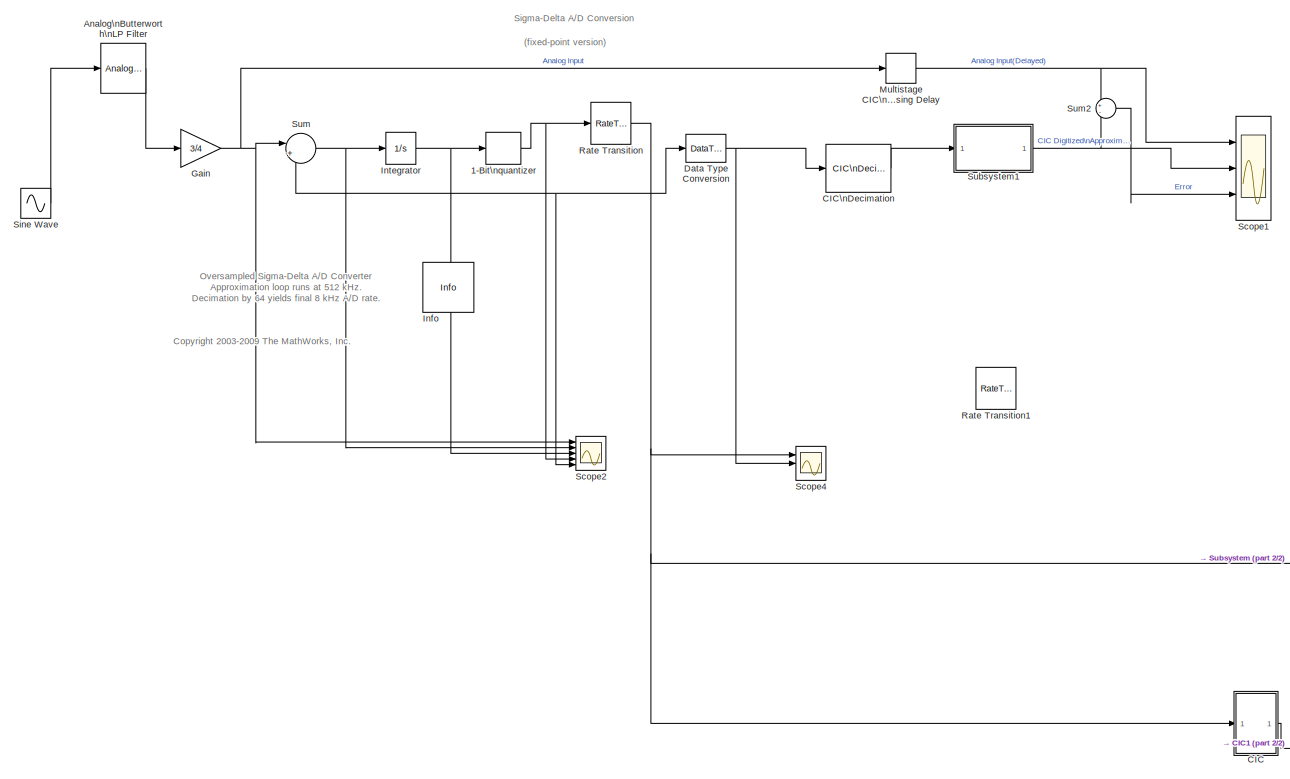
[diagram: root canvas - part 1/2, left side, full height]
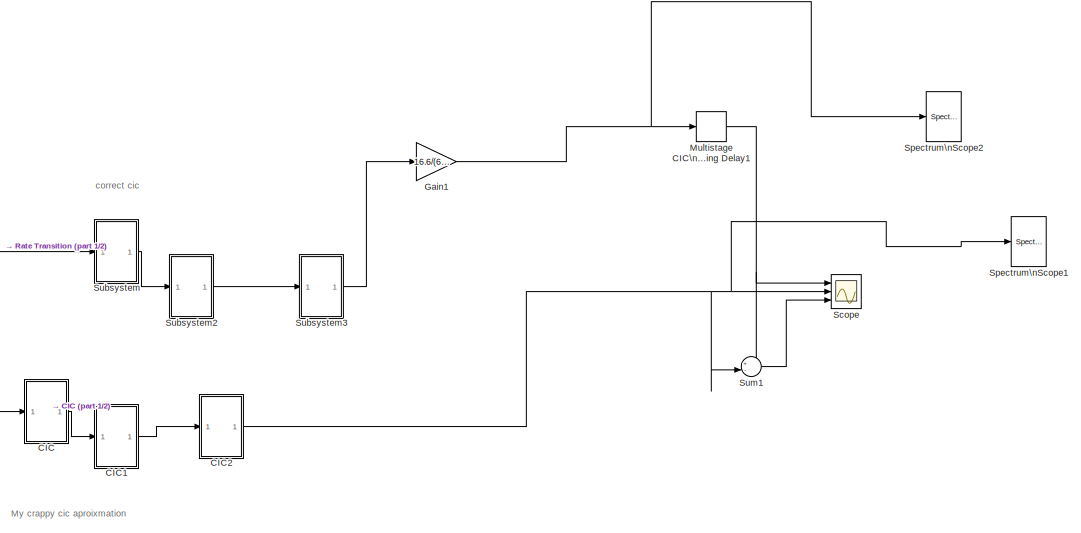
[diagram: root canvas - part 2/2, bottom right region]
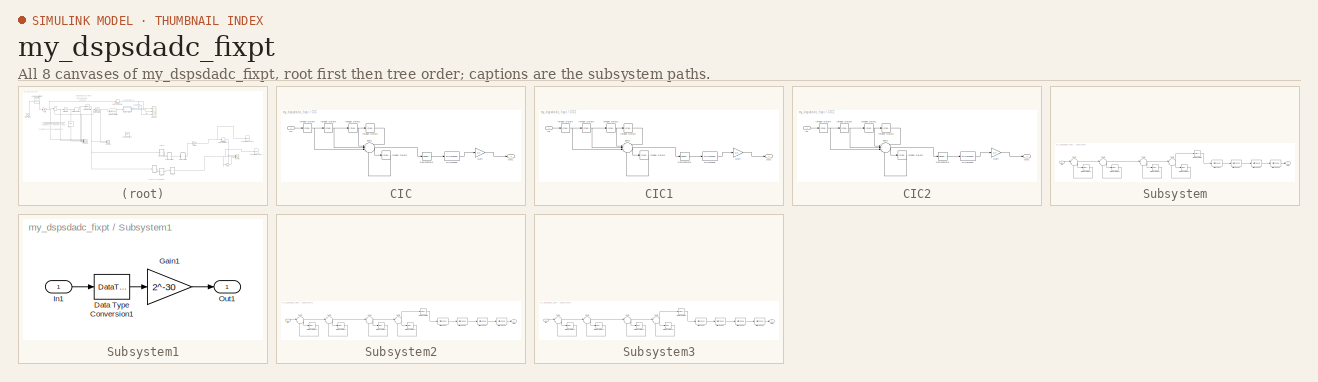
[diagram: thumbnail index - all 8 canvases of the model, root first then tree order]
MODEL my_dspsdadc_fixpt
KIND model
BLOCK [Signum] 1-Bit\nquantizer
  SID = 1
BLOCK [Reference] Analog\nButterworth\nLP Filter  REF=dsparch4/Analog\nFilter Design
  N = 5
  Ports = [1, 1]
  Rp = 2
  Rs = 40
  SID = 2
  SourceBlock = dsparch4/Analog\nFilter Design
  SourceType = Analog Filter Design
  Whi = 80
  Wlo = 2*pi*400
  filttype = Lowpass
  method = Butterworth
BLOCK [SubSystem] CIC
  FunctionWithSeparateData = off
  MaskHideContents = off
  MinAlgLoopOccurrences = off
  Opaque = off
  Ports = [1, 1]
  PropExecContextOutsideSubsystem = off
  RTWSystemCode = Auto
  RequestExecContextInheritance = off
  SID = 59
BLOCK [Reference] CIC/Difference  REF=simulink/Discrete/Difference
  DoSatur = off
  FunctionWithSeparateData = off
  ICPrevInput = 0.0
  LockScale = off
  OutDataType = fixdt(1, 16)
  OutDataTypeStr = Inherit: Inherit via internal rule
  OutMax = []
  OutMin = []
  OutScaling = 2^-10
  OutputDataTypeScalingMode = Inherit via internal rule
  Ports = [1, 1]
  RTWMemSecDataConstants = Inherit from model
  RTWMemSecDataInternal = Inherit from model
  RTWMemSecDataParameters = Inherit from model
  RTWMemSecFuncExecute = Inherit from model
  RTWMemSecFuncInitTerm = Inherit from model
  RndMeth = Floor
  SID = 57
  ShowPortLabels = FromPortIcon
  SourceBlock = simulink/Discrete/Difference
  SourceType = Difference
  SystemSampleTime = -1
BLOCK [Reference] CIC/Downsample  REF=dspsigops/Downsample
  N = 4
  Ports = [1, 1]
  SID = 55
  SourceBlock = dspsigops/Downsample
  SourceType = Downsample
  fmode = Maintain input frame size
  ic = 0
  phase = 0
  smode = Allow multirate
BLOCK [Gain] CIC/Gain
  Gain = 1/4
  OutDataType = sfix(16)
  OutScaling = 2^0
  ParameterDataType = sfix(16)
  ParameterScaling = 2^0
  SID = 89
BLOCK [Inport] CIC/In1
  IconDisplay = Port number
  SID = 60
BLOCK [Reference] CIC/Integer Delay1  REF=simulink/Discrete/Integer Delay
  NumDelays = 1
  Ports = [1, 1]
  SID = 53
  SourceBlock = simulink/Discrete/Integer Delay
  SourceType = Integer Delay
  samptime = -1
  vinit = 0.0
BLOCK [Reference] CIC/Integer Delay2  REF=simulink/Discrete/Integer Delay
  NumDelays = 1
  Ports = [1, 1]
  SID = 54
  SourceBlock = simulink/Discrete/Integer Delay
  SourceType = Integer Delay
  samptime = -1
  vinit = 0.0
BLOCK [Reference] CIC/Integer Delay3  REF=simulink/Discrete/Integer Delay
  NumDelays = 1
  Ports = [1, 1]
  SID = 58
  SourceBlock = simulink/Discrete/Integer Delay
  SourceType = Integer Delay
  samptime = -1
  vinit = 0.0
BLOCK [Reference] CIC/Integer Delay4  REF=simulink/Discrete/Integer Delay
  NumDelays = 1
  Ports = [1, 1]
  SID = 50
  SourceBlock = simulink/Discrete/Integer Delay
  SourceType = Integer Delay
  samptime = -1
  vinit = 0.0
BLOCK [Reference] CIC/Integer Delay5  REF=simulink/Discrete/Integer Delay
  NumDelays = 1
  Ports = [1, 1]
  SID = 52
  SourceBlock = simulink/Discrete/Integer Delay
  SourceType = Integer Delay
  samptime = -1
  vinit = 0.0
BLOCK [Outport] CIC/Out1
  IconDisplay = Port number
  SID = 61
BLOCK [Sum] CIC/Sum1
  IconShape = round
  Inputs = ++++||+
  OutDataType = sfix(16)
  OutScaling = 2^0
  Ports = [5, 1]
  SID = 51
BLOCK [SubSystem] CIC1
  FunctionWithSeparateData = off
  MaskHideContents = off
  MinAlgLoopOccurrences = off
  Opaque = off
  Ports = [1, 1]
  PropExecContextOutsideSubsystem = off
  RTWSystemCode = Auto
  RequestExecContextInheritance = off
  SID = 155
BLOCK [Reference] CIC1/Difference  REF=simulink/Discrete/Difference
  DoSatur = off
  FunctionWithSeparateData = off
  ICPrevInput = 0.0
  LockScale = off
  OutDataType = fixdt(1, 16)
  OutDataTypeStr = Inherit: Inherit via internal rule
  OutMax = []
  OutMin = []
  OutScaling = 2^-10
  OutputDataTypeScalingMode = Inherit via internal rule
  Ports = [1, 1]
  RTWMemSecDataConstants = Inherit from model
  RTWMemSecDataInternal = Inherit from model
  RTWMemSecDataParameters = Inherit from model
  RTWMemSecFuncExecute = Inherit from model
  RTWMemSecFuncInitTerm = Inherit from model
  RndMeth = Floor
  SID = 157
  ShowPortLabels = FromPortIcon
  SourceBlock = simulink/Discrete/Difference
  SourceType = Difference
  SystemSampleTime = -1
BLOCK [Reference] CIC1/Downsample  REF=dspsigops/Downsample
  N = 4
  Ports = [1, 1]
  SID = 158
  SourceBlock = dspsigops/Downsample
  SourceType = Downsample
  fmode = Maintain input frame size
  ic = 0
  phase = 0
  smode = Allow multirate
BLOCK [Gain] CIC1/Gain
  Gain = 1/4
  OutDataType = sfix(16)
  OutScaling = 2^0
  ParameterDataType = sfix(16)
  ParameterScaling = 2^0
  SID = 159
BLOCK [Inport] CIC1/In1
  IconDisplay = Port number
  SID = 156
BLOCK [Reference] CIC1/Integer Delay1  REF=simulink/Discrete/Integer Delay
  NumDelays = 1
  Ports = [1, 1]
  SID = 160
  SourceBlock = simulink/Discrete/Integer Delay
  SourceType = Integer Delay
  samptime = -1
  vinit = 0.0
BLOCK [Reference] CIC1/Integer Delay2  REF=simulink/Discrete/Integer Delay
  NumDelays = 1
  Ports = [1, 1]
  SID = 161
  SourceBlock = simulink/Discrete/Integer Delay
  SourceType = Integer Delay
  samptime = -1
  vinit = 0.0
BLOCK [Reference] CIC1/Integer Delay3  REF=simulink/Discrete/Integer Delay
  NumDelays = 1
  Ports = [1, 1]
  SID = 162
  SourceBlock = simulink/Discrete/Integer Delay
  SourceType = Integer Delay
  samptime = -1
  vinit = 0.0
BLOCK [Reference] CIC1/Integer Delay4  REF=simulink/Discrete/Integer Delay
  NumDelays = 1
  Ports = [1, 1]
  SID = 163
  SourceBlock = simulink/Discrete/Integer Delay
  SourceType = Integer Delay
  samptime = -1
  vinit = 0.0
BLOCK [Reference] CIC1/Integer Delay5  REF=simulink/Discrete/Integer Delay
  NumDelays = 1
  Ports = [1, 1]
  SID = 164
  SourceBlock = simulink/Discrete/Integer Delay
  SourceType = Integer Delay
  samptime = -1
  vinit = 0.0
BLOCK [Outport] CIC1/Out1
  IconDisplay = Port number
  SID = 166
BLOCK [Sum] CIC1/Sum1
  IconShape = round
  Inputs = ++++||+
  OutDataType = sfix(16)
  OutScaling = 2^0
  Ports = [5, 1]
  SID = 165
BLOCK [SubSystem] CIC2
  FunctionWithSeparateData = off
  MaskHideContents = off
  MinAlgLoopOccurrences = off
  Opaque = off
  Ports = [1, 1]
  PropExecContextOutsideSubsystem = off
  RTWSystemCode = Auto
  RequestExecContextInheritance = off
  SID = 167
BLOCK [Reference] CIC2/Difference  REF=simulink/Discrete/Difference
  DoSatur = off
  FunctionWithSeparateData = off
  ICPrevInput = 0.0
  LockScale = off
  OutDataType = fixdt(1, 16)
  OutDataTypeStr = Inherit: Inherit via internal rule
  OutMax = []
  OutMin = []
  OutScaling = 2^-10
  OutputDataTypeScalingMode = Inherit via internal rule
  Ports = [1, 1]
  RTWMemSecDataConstants = Inherit from model
  RTWMemSecDataInternal = Inherit from model
  RTWMemSecDataParameters = Inherit from model
  RTWMemSecFuncExecute = Inherit from model
  RTWMemSecFuncInitTerm = Inherit from model
  RndMeth = Floor
  SID = 169
  ShowPortLabels = FromPortIcon
  SourceBlock = simulink/Discrete/Difference
  SourceType = Difference
  SystemSampleTime = -1
BLOCK [Reference] CIC2/Downsample  REF=dspsigops/Downsample
  N = 4
  Ports = [1, 1]
  SID = 170
  SourceBlock = dspsigops/Downsample
  SourceType = Downsample
  fmode = Maintain input frame size
  ic = 0
  phase = 0
  smode = Allow multirate
BLOCK [Gain] CIC2/Gain
  Gain = 1/4
  OutDataType = sfix(16)
  OutScaling = 2^0
  ParameterDataType = sfix(16)
  ParameterScaling = 2^0
  SID = 171
BLOCK [Inport] CIC2/In1
  IconDisplay = Port number
  SID = 168
BLOCK [Reference] CIC2/Integer Delay1  REF=simulink/Discrete/Integer Delay
  NumDelays = 1
  Ports = [1, 1]
  SID = 172
  SourceBlock = simulink/Discrete/Integer Delay
  SourceType = Integer Delay
  samptime = -1
  vinit = 0.0
BLOCK [Reference] CIC2/Integer Delay2  REF=simulink/Discrete/Integer Delay
  NumDelays = 1
  Ports = [1, 1]
  SID = 173
  SourceBlock = simulink/Discrete/Integer Delay
  SourceType = Integer Delay
  samptime = -1
  vinit = 0.0
BLOCK [Reference] CIC2/Integer Delay3  REF=simulink/Discrete/Integer Delay
  NumDelays = 1
  Ports = [1, 1]
  SID = 174
  SourceBlock = simulink/Discrete/Integer Delay
  SourceType = Integer Delay
  samptime = -1
  vinit = 0.0
BLOCK [Reference] CIC2/Integer Delay4  REF=simulink/Discrete/Integer Delay
  NumDelays = 1
  Ports = [1, 1]
  SID = 175
  SourceBlock = simulink/Discrete/Integer Delay
  SourceType = Integer Delay
  samptime = -1
  vinit = 0.0
BLOCK [Reference] CIC2/Integer Delay5  REF=simulink/Discrete/Integer Delay
  NumDelays = 1
  Ports = [1, 1]
  SID = 176
  SourceBlock = simulink/Discrete/Integer Delay
  SourceType = Integer Delay
  samptime = -1
  vinit = 0.0
BLOCK [Outport] CIC2/Out1
  IconDisplay = Port number
  SID = 178
BLOCK [Sum] CIC2/Sum1
  IconShape = round
  Inputs = ++++||+
  OutDataType = sfix(16)
  OutScaling = 2^0
  Ports = [5, 1]
  SID = 177
BLOCK [Reference] CIC\nDecimation  REF=dspmlti4/CIC\nDecimation
  BPS = [32 30 24 20 16 16 16 16 16 16]
  DialogController = dspdialog.CICDecimation
  FLPS = 0
  M = 1
  N = 5
  Ports = [1, 1]
  R = 64
  SID = 3
  SourceBlock = dspmlti4/CIC\nDecimation
  SourceType = CIC Decimation
  UserData = DataTag0
  UserDataPersistent = on
  filtFrom = Dialog
  filterInternals = Full precision
  filtobj = Hm_decim
  framing = Maintain input frame rate
  ftype = Decimator
  launchFVT = off
  outputFracLength = 0
  outputWordLength = 16
BLOCK [DataTypeConversion] Data Type Conversion
  OutDataType = fixdt(1,2,0)
  OutDataTypeMode = Specify via dialog
  OutDataTypeStr = fixdt(1,2,0)
  RndMeth = Floor
  SID = 4
  SaturateOnIntegerOverflow = off
BLOCK [Gain] Gain
  Gain = 3/4
  OutDataType = sfix(16)
  OutScaling = 2^0
  ParameterDataType = sfix(16)
  ParameterScaling = 2^0
  SID = 5
BLOCK [Gain] Gain1
  Gain = 16.6/(64*4096)
  OutDataType = sfix(16)
  OutScaling = 2^0
  ParameterDataType = sfix(16)
  ParameterScaling = 2^0
  SID = 179
BLOCK [Reference] Info  REF=dspmisc/Info
  FunctionWithSeparateData = off
  Ports = []
  RTWMemSecDataConstants = Inherit from model
  RTWMemSecDataInternal = Inherit from model
  RTWMemSecDataParameters = Inherit from model
  RTWMemSecFuncExecute = Inherit from model
  RTWMemSecFuncInitTerm = Inherit from model
  SID = 6
  ShowPortLabels = FromPortIcon
  SourceBlock = dspmisc/Info
  SystemSampleTime = -1
BLOCK [Integrator] Integrator
  Ports = [1, 1]
  SID = 7
BLOCK [TransportDelay] Multistage CIC\nProcessing Delay
  DelayTime = 250/512000
  SID = 8
BLOCK [TransportDelay] Multistage CIC\nProcessing Delay1
  DelayTime = 0.1/10000
  SID = 181
BLOCK [RateTransition] Rate Transition
  OutPortSampleTime = 1/(512*1024)
  SID = 28
BLOCK [RateTransition] Rate Transition1
  OutPortSampleTime = 1/(512*1024)
  SID = 47
BLOCK [Scope] Scope
  DataFormat = StructureWithTime
  Floating = off
  LimitDataPoints = off
  NumInputPorts = 3
  Ports = [3]
  SID = 118
  SampleTime = 0
  SaveName = ScopeData1
  YMax = 5~5~5
  YMin = -5~-5~-5
  ZoomMode = xonly
BLOCK [Scope] Scope1
  DataFormat = StructureWithTime
  Floating = off
  LimitDataPoints = off
  MaxDataPoints = 15000
  NumInputPorts = 3
  Ports = [3]
  SID = 9
  SampleTime = 0
  TimeRange = 0.025
  YMax = 1.1~1.1~0.25
  YMin = -1.1~-1.1~-0.25
  ZoomMode = xonly
BLOCK [Scope] Scope2
  DataFormat = StructureWithTime
  Floating = off
  LimitDataPoints = off
  NumInputPorts = 5
  Ports = [5]
  SID = 190
  SampleTime = 0
  SaveName = ScopeData2
  YMax = 5~5~5~5~5
  YMin = -5~-5~-5~-5~-5
  ZoomMode = xonly
BLOCK [Scope] Scope4
  DataFormat = StructureWithTime
  Floating = off
  LimitDataPoints = off
  NumInputPorts = 3
  Ports = [3]
  SID = 24
  SampleTime = 0
  SaveName = ScopeData4
  YMax = 5~5~5
  YMin = -5~-5~-5
  ZoomMode = xonly
BLOCK [Sin] Sine Wave
  Amplitude = 1
  Bias = 0
  Frequency = 1
  Offset = 0
  Phase = 0
  Ports = [0, 1]
  SID = 19
  SampleTime = 1/(512*1024)
  Samples = 10000
  SineType = Sample based
BLOCK [Reference] Spectrum\nScope1  REF=dspsnks4/Spectrum\nScope
  AxisGrid = on
  AxisLegend = off
  AxisProperties = off
  AxisZoom = off
  BufferSize = 128
  DialogController = dspdialog.SpectrumScope
  DialogControllerArgs = DataTag1
  DisplayProperties = off
  Domain = Frequency
  FFTlength = 4096
  FigPos = get(0,'defaultfigureposition')
  FrameNumber = on
  FunctionWithSeparateData = off
  HorizSpan = 1
  InheritXIncr = on
  LineProperties = off
  Memory = off
  OpenScopeAtSimStart = on
  OpenScopeImmediately = off
  Overlap = 64
  Ports = [1]
  RTWMemSecDataConstants = Inherit from model
  RTWMemSecDataInternal = Inherit from model
  RTWMemSecDataParameters = Inherit from model
  RTWMemSecFuncExecute = Inherit from model
  RTWMemSecFuncInitTerm = Inherit from model
  RsSpecScope = 50
  SID = 188
  ScopeProperties = on
  ShowPortLabels = none
  SourceBlock = dspsnks4/Spectrum\nScope
  SourceType = Spectrum Scope
  SystemSampleTime = -1
  UseBuffer = on
  XAxisParamsVer = 6.9
  XDisplay = 0
  XIncr = 1.0
  XLabel = Samples
  XLimit = Auto
  XMax = 1
  XMin = 0
  XRange = Two-sided ((-Fs/2...Fs/2])
  XUnits = Hertz
  YLabel = Magnitude-squared, dB
  YMax = 100
  YMin = -100
  YUnits = dBW/Hertz
  betaSpecScope = 5
  inpFftLenInherit = off
  numAvg = 2
  winsampSpecScope = Periodic
  wintypeSpecScope = Hann
BLOCK [Reference] Spectrum\nScope2  REF=dspsnks4/Spectrum\nScope
  AxisGrid = on
  AxisLegend = off
  AxisProperties = off
  AxisZoom = off
  BufferSize = 128
  DialogController = dspdialog.SpectrumScope
  DialogControllerArgs = DataTag2
  DisplayProperties = off
  Domain = Frequency
  FFTlength = 4096
  FigPos = get(0,'defaultfigureposition')
  FrameNumber = on
  FunctionWithSeparateData = off
  HorizSpan = 1
  InheritXIncr = on
  LineProperties = off
  Memory = off
  OpenScopeAtSimStart = on
  OpenScopeImmediately = off
  Overlap = 64
  Ports = [1]
  RTWMemSecDataConstants = Inherit from model
  RTWMemSecDataInternal = Inherit from model
  RTWMemSecDataParameters = Inherit from model
  RTWMemSecFuncExecute = Inherit from model
  RTWMemSecFuncInitTerm = Inherit from model
  RsSpecScope = 50
  SID = 185
  ScopeProperties = on
  ShowPortLabels = none
  SourceBlock = dspsnks4/Spectrum\nScope
  SourceType = Spectrum Scope
  SystemSampleTime = -1
  UseBuffer = on
  XAxisParamsVer = 6.9
  XDisplay = 0
  XIncr = 1.0
  XLabel = Samples
  XLimit = Auto
  XMax = 1
  XMin = 0
  XRange = Two-sided ((-Fs/2...Fs/2])
  XUnits = Hertz
  YLabel = Magnitude-squared, dB
  YMax = 100
  YMin = -100
  YUnits = dBW/Hertz
  betaSpecScope = 5
  inpFftLenInherit = off
  numAvg = 2
  winsampSpecScope = Periodic
  wintypeSpecScope = Hann
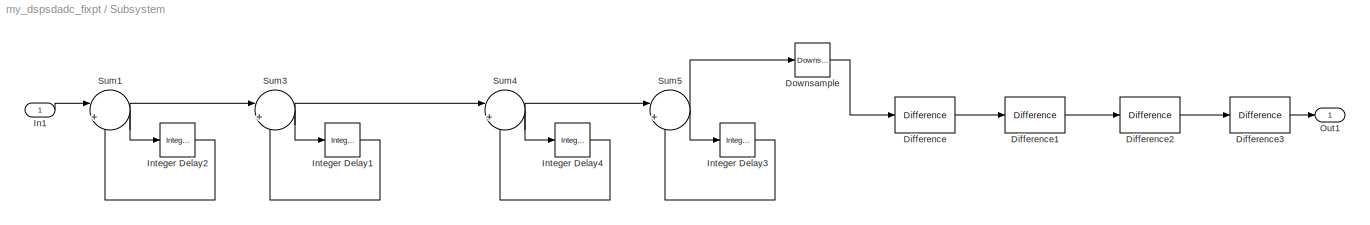
BLOCK [SubSystem] Subsystem
  FunctionWithSeparateData = off
  MaskHideContents = off
  MinAlgLoopOccurrences = off
  Opaque = off
  Ports = [1, 1]
  PropExecContextOutsideSubsystem = off
  RTWSystemCode = Auto
  RequestExecContextInheritance = off
  SID = 120
BLOCK [Reference] Subsystem/Difference  REF=simulink/Discrete/Difference
  DoSatur = off
  FunctionWithSeparateData = off
  ICPrevInput = 0.0
  LockScale = off
  OutDataType = fixdt(1, 16)
  OutDataTypeStr = Inherit: Inherit via internal rule
  OutMax = []
  OutMin = []
  OutScaling = 2^-10
  OutputDataTypeScalingMode = Inherit via internal rule
  Ports = [1, 1]
  RTWMemSecDataConstants = Inherit from model
  RTWMemSecDataInternal = Inherit from model
  RTWMemSecDataParameters = Inherit from model
  RTWMemSecFuncExecute = Inherit from model
  RTWMemSecFuncInitTerm = Inherit from model
  RndMeth = Floor
  SID = 114
  ShowPortLabels = FromPortIcon
  SourceBlock = simulink/Discrete/Difference
  SourceType = Difference
  SystemSampleTime = -1
BLOCK [Reference] Subsystem/Difference1  REF=simulink/Discrete/Difference
  DoSatur = off
  FunctionWithSeparateData = off
  ICPrevInput = 0.0
  LockScale = off
  OutDataType = fixdt(1, 16)
  OutDataTypeStr = Inherit: Inherit via internal rule
  OutMax = []
  OutMin = []
  OutScaling = 2^-10
  OutputDataTypeScalingMode = Inherit via internal rule
  Ports = [1, 1]
  RTWMemSecDataConstants = Inherit from model
  RTWMemSecDataInternal = Inherit from model
  RTWMemSecDataParameters = Inherit from model
  RTWMemSecFuncExecute = Inherit from model
  RTWMemSecFuncInitTerm = Inherit from model
  RndMeth = Floor
  SID = 115
  ShowPortLabels = FromPortIcon
  SourceBlock = simulink/Discrete/Difference
  SourceType = Difference
  SystemSampleTime = -1
BLOCK [Reference] Subsystem/Difference2  REF=simulink/Discrete/Difference
  DoSatur = off
  FunctionWithSeparateData = off
  ICPrevInput = 0.0
  LockScale = off
  OutDataType = fixdt(1, 16)
  OutDataTypeStr = Inherit: Inherit via internal rule
  OutMax = []
  OutMin = []
  OutScaling = 2^-10
  OutputDataTypeScalingMode = Inherit via internal rule
  Ports = [1, 1]
  RTWMemSecDataConstants = Inherit from model
  RTWMemSecDataInternal = Inherit from model
  RTWMemSecDataParameters = Inherit from model
  RTWMemSecFuncExecute = Inherit from model
  RTWMemSecFuncInitTerm = Inherit from model
  RndMeth = Floor
  SID = 116
  ShowPortLabels = FromPortIcon
  SourceBlock = simulink/Discrete/Difference
  SourceType = Difference
  SystemSampleTime = -1
BLOCK [Reference] Subsystem/Difference3  REF=simulink/Discrete/Difference
  DoSatur = off
  FunctionWithSeparateData = off
  ICPrevInput = 0.0
  LockScale = off
  OutDataType = fixdt(1, 16)
  OutDataTypeStr = Inherit: Inherit via internal rule
  OutMax = []
  OutMin = []
  OutScaling = 2^-10
  OutputDataTypeScalingMode = Inherit via internal rule
  Ports = [1, 1]
  RTWMemSecDataConstants = Inherit from model
  RTWMemSecDataInternal = Inherit from model
  RTWMemSecDataParameters = Inherit from model
  RTWMemSecFuncExecute = Inherit from model
  RTWMemSecFuncInitTerm = Inherit from model
  RndMeth = Floor
  SID = 117
  ShowPortLabels = FromPortIcon
  SourceBlock = simulink/Discrete/Difference
  SourceType = Difference
  SystemSampleTime = -1
BLOCK [Reference] Subsystem/Downsample  REF=dspsigops/Downsample
  N = 2
  Ports = [1, 1]
  SID = 119
  SourceBlock = dspsigops/Downsample
  SourceType = Downsample
  fmode = Maintain input frame size
  ic = 0
  phase = 0
  smode = Allow multirate
BLOCK [Inport] Subsystem/In1
  IconDisplay = Port number
  SID = 121
BLOCK [Reference] Subsystem/Integer Delay1  REF=simulink/Discrete/Integer Delay
  NumDelays = 1
  Ports = [1, 1]
  SID = 108
  SourceBlock = simulink/Discrete/Integer Delay
  SourceType = Integer Delay
  samptime = -1
  vinit = 0.0
BLOCK [Reference] Subsystem/Integer Delay2  REF=simulink/Discrete/Integer Delay
  NumDelays = 1
  Ports = [1, 1]
  SID = 103
  SourceBlock = simulink/Discrete/Integer Delay
  SourceType = Integer Delay
  samptime = -1
  vinit = 0.0
BLOCK [Reference] Subsystem/Integer Delay3  REF=simulink/Discrete/Integer Delay
  NumDelays = 1
  Ports = [1, 1]
  SID = 110
  SourceBlock = simulink/Discrete/Integer Delay
  SourceType = Integer Delay
  samptime = -1
  vinit = 0.0
BLOCK [Reference] Subsystem/Integer Delay4  REF=simulink/Discrete/Integer Delay
  NumDelays = 1
  Ports = [1, 1]
  SID = 111
  SourceBlock = simulink/Discrete/Integer Delay
  SourceType = Integer Delay
  samptime = -1
  vinit = 0.0
BLOCK [Outport] Subsystem/Out1
  IconDisplay = Port number
  SID = 122
BLOCK [Sum] Subsystem/Sum1
  IconShape = round
  Inputs = |++
  OutDataType = sfix(16)
  OutScaling = 2^0
  Ports = [2, 1]
  SID = 107
BLOCK [Sum] Subsystem/Sum3
  IconShape = round
  Inputs = |++
  OutDataType = sfix(16)
  OutScaling = 2^0
  Ports = [2, 1]
  SID = 109
BLOCK [Sum] Subsystem/Sum4
  IconShape = round
  Inputs = |++
  OutDataType = sfix(16)
  OutScaling = 2^0
  Ports = [2, 1]
  SID = 112
BLOCK [Sum] Subsystem/Sum5
  IconShape = round
  Inputs = |++
  OutDataType = sfix(16)
  OutScaling = 2^0
  Ports = [2, 1]
  SID = 113
BLOCK [SubSystem] Subsystem1
  FunctionWithSeparateData = off
  MaskDisplay = disp('Rescaling for\\nComparison')
  MaskHideContents = off
  MaskIconFrame = on
  MaskIconOpaque = on
  MaskIconRotate = none
  MaskIconUnits = autoscale
  MaskPortRotate = default
  MinAlgLoopOccurrences = off
  Opaque = off
  Ports = [1, 1]
  PropExecContextOutsideSubsystem = off
  RTWSystemCode = Auto
  RequestExecContextInheritance = off
  SID = 11
BLOCK [DataTypeConversion] Subsystem1/Data Type Conversion1
  OutDataType = sfix(2)
  OutDataTypeMode = single
  OutDataTypeStr = single
  OutScaling = 2^0
  RndMeth = Floor
  SID = 13
  SaturateOnIntegerOverflow = off
BLOCK [Gain] Subsystem1/Gain1
  Gain = 2^-30
  OutDataType = sfix(16)
  OutScaling = 2^0
  ParameterDataType = sfix(16)
  ParameterScaling = 2^0
  SID = 14
BLOCK [Inport] Subsystem1/In1
  IconDisplay = Port number
  OutDataType = sfix(16)
  OutScaling = 2^0
  SID = 12
BLOCK [Outport] Subsystem1/Out1
  IconDisplay = Port number
  OutDataType = sfix(16)
  OutScaling = 2^0
  SID = 15
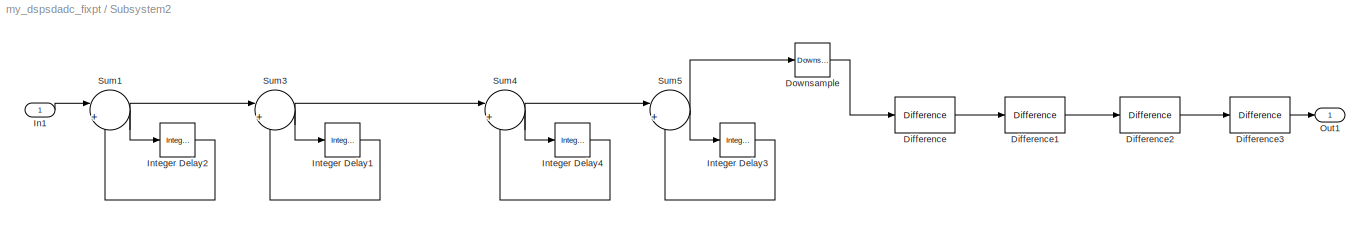
BLOCK [SubSystem] Subsystem2
  FunctionWithSeparateData = off
  MaskHideContents = off
  MinAlgLoopOccurrences = off
  Opaque = off
  Ports = [1, 1]
  PropExecContextOutsideSubsystem = off
  RTWSystemCode = Auto
  RequestExecContextInheritance = off
  SID = 123
BLOCK [Reference] Subsystem2/Difference  REF=simulink/Discrete/Difference
  DoSatur = off
  FunctionWithSeparateData = off
  ICPrevInput = 0.0
  LockScale = off
  OutDataType = fixdt(1, 16)
  OutDataTypeStr = Inherit: Inherit via internal rule
  OutMax = []
  OutMin = []
  OutScaling = 2^-10
  OutputDataTypeScalingMode = Inherit via internal rule
  Ports = [1, 1]
  RTWMemSecDataConstants = Inherit from model
  RTWMemSecDataInternal = Inherit from model
  RTWMemSecDataParameters = Inherit from model
  RTWMemSecFuncExecute = Inherit from model
  RTWMemSecFuncInitTerm = Inherit from model
  RndMeth = Floor
  SID = 125
  ShowPortLabels = FromPortIcon
  SourceBlock = simulink/Discrete/Difference
  SourceType = Difference
  SystemSampleTime = -1
BLOCK [Reference] Subsystem2/Difference1  REF=simulink/Discrete/Difference
  DoSatur = off
  FunctionWithSeparateData = off
  ICPrevInput = 0.0
  LockScale = off
  OutDataType = fixdt(1, 16)
  OutDataTypeStr = Inherit: Inherit via internal rule
  OutMax = []
  OutMin = []
  OutScaling = 2^-10
  OutputDataTypeScalingMode = Inherit via internal rule
  Ports = [1, 1]
  RTWMemSecDataConstants = Inherit from model
  RTWMemSecDataInternal = Inherit from model
  RTWMemSecDataParameters = Inherit from model
  RTWMemSecFuncExecute = Inherit from model
  RTWMemSecFuncInitTerm = Inherit from model
  RndMeth = Floor
  SID = 126
  ShowPortLabels = FromPortIcon
  SourceBlock = simulink/Discrete/Difference
  SourceType = Difference
  SystemSampleTime = -1
BLOCK [Reference] Subsystem2/Difference2  REF=simulink/Discrete/Difference
  DoSatur = off
  FunctionWithSeparateData = off
  ICPrevInput = 0.0
  LockScale = off
  OutDataType = fixdt(1, 16)
  OutDataTypeStr = Inherit: Inherit via internal rule
  OutMax = []
  OutMin = []
  OutScaling = 2^-10
  OutputDataTypeScalingMode = Inherit via internal rule
  Ports = [1, 1]
  RTWMemSecDataConstants = Inherit from model
  RTWMemSecDataInternal = Inherit from model
  RTWMemSecDataParameters = Inherit from model
  RTWMemSecFuncExecute = Inherit from model
  RTWMemSecFuncInitTerm = Inherit from model
  RndMeth = Floor
  SID = 127
  ShowPortLabels = FromPortIcon
  SourceBlock = simulink/Discrete/Difference
  SourceType = Difference
  SystemSampleTime = -1
BLOCK [Reference] Subsystem2/Difference3  REF=simulink/Discrete/Difference
  DoSatur = off
  FunctionWithSeparateData = off
  ICPrevInput = 0.0
  LockScale = off
  OutDataType = fixdt(1, 16)
  OutDataTypeStr = Inherit: Inherit via internal rule
  OutMax = []
  OutMin = []
  OutScaling = 2^-10
  OutputDataTypeScalingMode = Inherit via internal rule
  Ports = [1, 1]
  RTWMemSecDataConstants = Inherit from model
  RTWMemSecDataInternal = Inherit from model
  RTWMemSecDataParameters = Inherit from model
  RTWMemSecFuncExecute = Inherit from model
  RTWMemSecFuncInitTerm = Inherit from model
  RndMeth = Floor
  SID = 128
  ShowPortLabels = FromPortIcon
  SourceBlock = simulink/Discrete/Difference
  SourceType = Difference
  SystemSampleTime = -1
BLOCK [Reference] Subsystem2/Downsample  REF=dspsigops/Downsample
  N = 4
  Ports = [1, 1]
  SID = 129
  SourceBlock = dspsigops/Downsample
  SourceType = Downsample
  fmode = Maintain input frame size
  ic = 0
  phase = 0
  smode = Allow multirate
BLOCK [Inport] Subsystem2/In1
  IconDisplay = Port number
  SID = 124
BLOCK [Reference] Subsystem2/Integer Delay1  REF=simulink/Discrete/Integer Delay
  NumDelays = 1
  Ports = [1, 1]
  SID = 130
  SourceBlock = simulink/Discrete/Integer Delay
  SourceType = Integer Delay
  samptime = -1
  vinit = 0.0
BLOCK [Reference] Subsystem2/Integer Delay2  REF=simulink/Discrete/Integer Delay
  NumDelays = 1
  Ports = [1, 1]
  SID = 131
  SourceBlock = simulink/Discrete/Integer Delay
  SourceType = Integer Delay
  samptime = -1
  vinit = 0.0
BLOCK [Reference] Subsystem2/Integer Delay3  REF=simulink/Discrete/Integer Delay
  NumDelays = 1
  Ports = [1, 1]
  SID = 132
  SourceBlock = simulink/Discrete/Integer Delay
  SourceType = Integer Delay
  samptime = -1
  vinit = 0.0
BLOCK [Reference] Subsystem2/Integer Delay4  REF=simulink/Discrete/Integer Delay
  NumDelays = 1
  Ports = [1, 1]
  SID = 133
  SourceBlock = simulink/Discrete/Integer Delay
  SourceType = Integer Delay
  samptime = -1
  vinit = 0.0
BLOCK [Outport] Subsystem2/Out1
  IconDisplay = Port number
  SID = 138
BLOCK [Sum] Subsystem2/Sum1
  IconShape = round
  Inputs = |++
  OutDataType = sfix(16)
  OutScaling = 2^0
  Ports = [2, 1]
  SID = 134
BLOCK [Sum] Subsystem2/Sum3
  IconShape = round
  Inputs = |++
  OutDataType = sfix(16)
  OutScaling = 2^0
  Ports = [2, 1]
  SID = 135
BLOCK [Sum] Subsystem2/Sum4
  IconShape = round
  Inputs = |++
  OutDataType = sfix(16)
  OutScaling = 2^0
  Ports = [2, 1]
  SID = 136
BLOCK [Sum] Subsystem2/Sum5
  IconShape = round
  Inputs = |++
  OutDataType = sfix(16)
  OutScaling = 2^0
  Ports = [2, 1]
  SID = 137
BLOCK [SubSystem] Subsystem3
  FunctionWithSeparateData = off
  MaskHideContents = off
  MinAlgLoopOccurrences = off
  Opaque = off
  Ports = [1, 1]
  PropExecContextOutsideSubsystem = off
  RTWSystemCode = Auto
  RequestExecContextInheritance = off
  SID = 139
BLOCK [Reference] Subsystem3/Difference  REF=simulink/Discrete/Difference
  DoSatur = off
  FunctionWithSeparateData = off
  ICPrevInput = 0.0
  LockScale = off
  OutDataType = fixdt(1, 16)
  OutDataTypeStr = Inherit: Inherit via internal rule
  OutMax = []
  OutMin = []
  OutScaling = 2^-10
  OutputDataTypeScalingMode = Inherit via internal rule
  Ports = [1, 1]
  RTWMemSecDataConstants = Inherit from model
  RTWMemSecDataInternal = Inherit from model
  RTWMemSecDataParameters = Inherit from model
  RTWMemSecFuncExecute = Inherit from model
  RTWMemSecFuncInitTerm = Inherit from model
  RndMeth = Floor
  SID = 141
  ShowPortLabels = FromPortIcon
  SourceBlock = simulink/Discrete/Difference
  SourceType = Difference
  SystemSampleTime = -1
BLOCK [Reference] Subsystem3/Difference1  REF=simulink/Discrete/Difference
  DoSatur = off
  FunctionWithSeparateData = off
  ICPrevInput = 0.0
  LockScale = off
  OutDataType = fixdt(1, 16)
  OutDataTypeStr = Inherit: Inherit via internal rule
  OutMax = []
  OutMin = []
  OutScaling = 2^-10
  OutputDataTypeScalingMode = Inherit via internal rule
  Ports = [1, 1]
  RTWMemSecDataConstants = Inherit from model
  RTWMemSecDataInternal = Inherit from model
  RTWMemSecDataParameters = Inherit from model
  RTWMemSecFuncExecute = Inherit from model
  RTWMemSecFuncInitTerm = Inherit from model
  RndMeth = Floor
  SID = 142
  ShowPortLabels = FromPortIcon
  SourceBlock = simulink/Discrete/Difference
  SourceType = Difference
  SystemSampleTime = -1
BLOCK [Reference] Subsystem3/Difference2  REF=simulink/Discrete/Difference
  DoSatur = off
  FunctionWithSeparateData = off
  ICPrevInput = 0.0
  LockScale = off
  OutDataType = fixdt(1, 16)
  OutDataTypeStr = Inherit: Inherit via internal rule
  OutMax = []
  OutMin = []
  OutScaling = 2^-10
  OutputDataTypeScalingMode = Inherit via internal rule
  Ports = [1, 1]
  RTWMemSecDataConstants = Inherit from model
  RTWMemSecDataInternal = Inherit from model
  RTWMemSecDataParameters = Inherit from model
  RTWMemSecFuncExecute = Inherit from model
  RTWMemSecFuncInitTerm = Inherit from model
  RndMeth = Floor
  SID = 143
  ShowPortLabels = FromPortIcon
  SourceBlock = simulink/Discrete/Difference
  SourceType = Difference
  SystemSampleTime = -1
BLOCK [Reference] Subsystem3/Difference3  REF=simulink/Discrete/Difference
  DoSatur = off
  FunctionWithSeparateData = off
  ICPrevInput = 0.0
  LockScale = off
  OutDataType = fixdt(1, 16)
  OutDataTypeStr = Inherit: Inherit via internal rule
  OutMax = []
  OutMin = []
  OutScaling = 2^-10
  OutputDataTypeScalingMode = Inherit via internal rule
  Ports = [1, 1]
  RTWMemSecDataConstants = Inherit from model
  RTWMemSecDataInternal = Inherit from model
  RTWMemSecDataParameters = Inherit from model
  RTWMemSecFuncExecute = Inherit from model
  RTWMemSecFuncInitTerm = Inherit from model
  RndMeth = Floor
  SID = 144
  ShowPortLabels = FromPortIcon
  SourceBlock = simulink/Discrete/Difference
  SourceType = Difference
  SystemSampleTime = -1
BLOCK [Reference] Subsystem3/Downsample  REF=dspsigops/Downsample
  N = 4
  Ports = [1, 1]
  SID = 145
  SourceBlock = dspsigops/Downsample
  SourceType = Downsample
  fmode = Maintain input frame size
  ic = 0
  phase = 0
  smode = Allow multirate
BLOCK [Inport] Subsystem3/In1
  IconDisplay = Port number
  SID = 140
BLOCK [Reference] Subsystem3/Integer Delay1  REF=simulink/Discrete/Integer Delay
  NumDelays = 1
  Ports = [1, 1]
  SID = 146
  SourceBlock = simulink/Discrete/Integer Delay
  SourceType = Integer Delay
  samptime = -1
  vinit = 0.0
BLOCK [Reference] Subsystem3/Integer Delay2  REF=simulink/Discrete/Integer Delay
  NumDelays = 1
  Ports = [1, 1]
  SID = 147
  SourceBlock = simulink/Discrete/Integer Delay
  SourceType = Integer Delay
  samptime = -1
  vinit = 0.0
BLOCK [Reference] Subsystem3/Integer Delay3  REF=simulink/Discrete/Integer Delay
  NumDelays = 1
  Ports = [1, 1]
  SID = 148
  SourceBlock = simulink/Discrete/Integer Delay
  SourceType = Integer Delay
  samptime = -1
  vinit = 0.0
BLOCK [Reference] Subsystem3/Integer Delay4  REF=simulink/Discrete/Integer Delay
  NumDelays = 1
  Ports = [1, 1]
  SID = 149
  SourceBlock = simulink/Discrete/Integer Delay
  SourceType = Integer Delay
  samptime = -1
  vinit = 0.0
BLOCK [Outport] Subsystem3/Out1
  IconDisplay = Port number
  SID = 154
BLOCK [Sum] Subsystem3/Sum1
  IconShape = round
  Inputs = |++
  OutDataType = sfix(16)
  OutScaling = 2^0
  Ports = [2, 1]
  SID = 150
BLOCK [Sum] Subsystem3/Sum3
  IconShape = round
  Inputs = |++
  OutDataType = sfix(16)
  OutScaling = 2^0
  Ports = [2, 1]
  SID = 151
BLOCK [Sum] Subsystem3/Sum4
  IconShape = round
  Inputs = |++
  OutDataType = sfix(16)
  OutScaling = 2^0
  Ports = [2, 1]
  SID = 152
BLOCK [Sum] Subsystem3/Sum5
  IconShape = round
  Inputs = |++
  OutDataType = sfix(16)
  OutScaling = 2^0
  Ports = [2, 1]
  SID = 153
BLOCK [Sum] Sum
  IconShape = round
  Inputs = |+-
  OutDataType = sfix(16)
  OutScaling = 2^0
  Ports = [2, 1]
  SID = 16
BLOCK [Sum] Sum1
  IconShape = round
  InputSameDT = off
  Inputs = +-
  OutDataType = sfix(16)
  OutDataTypeMode = Inherit via internal rule
  OutDataTypeStr = Inherit: Inherit via internal rule
  OutScaling = 2^0
  Ports = [2, 1]
  RndMeth = Nearest
  SID = 180
BLOCK [Sum] Sum2
  IconShape = round
  InputSameDT = off
  Inputs = +-
  OutDataType = sfix(16)
  OutDataTypeMode = Inherit via internal rule
  OutDataTypeStr = Inherit: Inherit via internal rule
  OutScaling = 2^0
  Ports = [2, 1]
  RndMeth = Nearest
  SID = 17
ANNOTATION (root): (fixed-point version)
ANNOTATION (root): <copyright redacted>
ANNOTATION (root): My crappy cic aproixmation
ANNOTATION (root): Oversampled Sigma-Delta A/D Converter\nApproximation loop runs at 512 kHz.\nDecimation by 64 yields final 8 kHz A/D rate.
ANNOTATION (root): Sigma-Delta A/D Conversion
ANNOTATION (root): correct cic
NET 1-Bit\nquantizer:1 -> Rate Transition:1, Scope2:4
LINE Analog\nButterworth\nLP Filter:1 -> Gain:1
LINE CIC/Difference:1 -> CIC/Gain:1
LINE CIC/Downsample:1 -> CIC/Difference:1
LINE CIC/Gain:1 -> CIC/Out1:1
LINE CIC/In1:1 -> CIC/Integer Delay4:1
NET CIC/Integer Delay1:1 -> CIC/Integer Delay3:1, CIC/Sum1:2
LINE CIC/Integer Delay2:1 -> CIC/Sum1:5
LINE CIC/Integer Delay3:1 -> CIC/Sum1:1
NET CIC/Integer Delay4:1 -> CIC/Integer Delay5:1, CIC/Sum1:4
NET CIC/Integer Delay5:1 -> CIC/Integer Delay1:1, CIC/Sum1:3
NET CIC/Sum1:1 -> CIC/Downsample:1, CIC/Integer Delay2:1
LINE CIC1/Difference:1 -> CIC1/Gain:1
LINE CIC1/Downsample:1 -> CIC1/Difference:1
LINE CIC1/Gain:1 -> CIC1/Out1:1
LINE CIC1/In1:1 -> CIC1/Integer Delay4:1
NET CIC1/Integer Delay1:1 -> CIC1/Integer Delay3:1, CIC1/Sum1:2
LINE CIC1/Integer Delay2:1 -> CIC1/Sum1:5
LINE CIC1/Integer Delay3:1 -> CIC1/Sum1:1
NET CIC1/Integer Delay4:1 -> CIC1/Integer Delay5:1, CIC1/Sum1:4
NET CIC1/Integer Delay5:1 -> CIC1/Integer Delay1:1, CIC1/Sum1:3
NET CIC1/Sum1:1 -> CIC1/Downsample:1, CIC1/Integer Delay2:1
LINE CIC1:1 -> CIC2:1
LINE CIC2/Difference:1 -> CIC2/Gain:1
LINE CIC2/Downsample:1 -> CIC2/Difference:1
LINE CIC2/Gain:1 -> CIC2/Out1:1
LINE CIC2/In1:1 -> CIC2/Integer Delay4:1
NET CIC2/Integer Delay1:1 -> CIC2/Integer Delay3:1, CIC2/Sum1:2
LINE CIC2/Integer Delay2:1 -> CIC2/Sum1:5
LINE CIC2/Integer Delay3:1 -> CIC2/Sum1:1
NET CIC2/Integer Delay4:1 -> CIC2/Integer Delay5:1, CIC2/Sum1:4
NET CIC2/Integer Delay5:1 -> CIC2/Integer Delay1:1, CIC2/Sum1:3
NET CIC2/Sum1:1 -> CIC2/Downsample:1, CIC2/Integer Delay2:1
NET CIC2:1 -> Scope:2, Spectrum\nScope1:1, Sum1:2
LINE CIC:1 -> CIC1:1
LINE CIC\nDecimation:1 -> Subsystem1:1
NET Data Type Conversion:1 -> CIC\nDecimation:1, Scope4:2
NET Gain1:1 -> Multistage CIC\nProcessing Delay1:1, Spectrum\nScope2:1
NET Gain:1 -> Multistage CIC\nProcessing Delay:1, Scope2:1, Sum:1
NET Integrator:1 -> 1-Bit\nquantizer:1, Scope2:3
NET Multistage CIC\nProcessing Delay1:1 -> Scope:1, Sum1:1
NET Multistage CIC\nProcessing Delay:1 -> Scope1:1, Sum2:1
NET Rate Transition:1 -> CIC:1, Data Type Conversion:1, Scope2:5, Scope4:1, Subsystem:1, Sum:2
LINE Sine Wave:1 -> Analog\nButterworth\nLP Filter:1
LINE Subsystem/Difference1:1 -> Subsystem/Difference2:1
LINE Subsystem/Difference2:1 -> Subsystem/Difference3:1
LINE Subsystem/Difference3:1 -> Subsystem/Out1:1
LINE Subsystem/Difference:1 -> Subsystem/Difference1:1
LINE Subsystem/Downsample:1 -> Subsystem/Difference:1
LINE Subsystem/In1:1 -> Subsystem/Sum1:1
LINE Subsystem/Integer Delay1:1 -> Subsystem/Sum3:2
LINE Subsystem/Integer Delay2:1 -> Subsystem/Sum1:2
LINE Subsystem/Integer Delay3:1 -> Subsystem/Sum5:2
LINE Subsystem/Integer Delay4:1 -> Subsystem/Sum4:2
NET Subsystem/Sum1:1 -> Subsystem/Integer Delay2:1, Subsystem/Sum3:1
NET Subsystem/Sum3:1 -> Subsystem/Integer Delay1:1, Subsystem/Sum4:1
NET Subsystem/Sum4:1 -> Subsystem/Integer Delay4:1, Subsystem/Sum5:1
NET Subsystem/Sum5:1 -> Subsystem/Downsample:1, Subsystem/Integer Delay3:1
LINE Subsystem1/Data Type Conversion1:1 -> Subsystem1/Gain1:1
LINE Subsystem1/Gain1:1 -> Subsystem1/Out1:1
LINE Subsystem1/In1:1 -> Subsystem1/Data Type Conversion1:1
NET Subsystem1:1 -> Scope1:2, Sum2:2
LINE Subsystem2/Difference1:1 -> Subsystem2/Difference2:1
LINE Subsystem2/Difference2:1 -> Subsystem2/Difference3:1
LINE Subsystem2/Difference3:1 -> Subsystem2/Out1:1
LINE Subsystem2/Difference:1 -> Subsystem2/Difference1:1
LINE Subsystem2/Downsample:1 -> Subsystem2/Difference:1
LINE Subsystem2/In1:1 -> Subsystem2/Sum1:1
LINE Subsystem2/Integer Delay1:1 -> Subsystem2/Sum3:2
LINE Subsystem2/Integer Delay2:1 -> Subsystem2/Sum1:2
LINE Subsystem2/Integer Delay3:1 -> Subsystem2/Sum5:2
LINE Subsystem2/Integer Delay4:1 -> Subsystem2/Sum4:2
NET Subsystem2/Sum1:1 -> Subsystem2/Integer Delay2:1, Subsystem2/Sum3:1
NET Subsystem2/Sum3:1 -> Subsystem2/Integer Delay1:1, Subsystem2/Sum4:1
NET Subsystem2/Sum4:1 -> Subsystem2/Integer Delay4:1, Subsystem2/Sum5:1
NET Subsystem2/Sum5:1 -> Subsystem2/Downsample:1, Subsystem2/Integer Delay3:1
LINE Subsystem2:1 -> Subsystem3:1
LINE Subsystem3/Difference1:1 -> Subsystem3/Difference2:1
LINE Subsystem3/Difference2:1 -> Subsystem3/Difference3:1
LINE Subsystem3/Difference3:1 -> Subsystem3/Out1:1
LINE Subsystem3/Difference:1 -> Subsystem3/Difference1:1
LINE Subsystem3/Downsample:1 -> Subsystem3/Difference:1
LINE Subsystem3/In1:1 -> Subsystem3/Sum1:1
LINE Subsystem3/Integer Delay1:1 -> Subsystem3/Sum3:2
LINE Subsystem3/Integer Delay2:1 -> Subsystem3/Sum1:2
LINE Subsystem3/Integer Delay3:1 -> Subsystem3/Sum5:2
LINE Subsystem3/Integer Delay4:1 -> Subsystem3/Sum4:2
NET Subsystem3/Sum1:1 -> Subsystem3/Integer Delay2:1, Subsystem3/Sum3:1
NET Subsystem3/Sum3:1 -> Subsystem3/Integer Delay1:1, Subsystem3/Sum4:1
NET Subsystem3/Sum4:1 -> Subsystem3/Integer Delay4:1, Subsystem3/Sum5:1
NET Subsystem3/Sum5:1 -> Subsystem3/Downsample:1, Subsystem3/Integer Delay3:1
LINE Subsystem3:1 -> Gain1:1
LINE Subsystem:1 -> Subsystem2:1
LINE Sum1:1 -> Scope:3
LINE Sum2:1 -> Scope1:3
NET Sum:1 -> Integrator:1, Scope2:2
note: NET lines group one-source signal fan-out (src -> all destinations, sorted); 1:1 wires keep LINE
